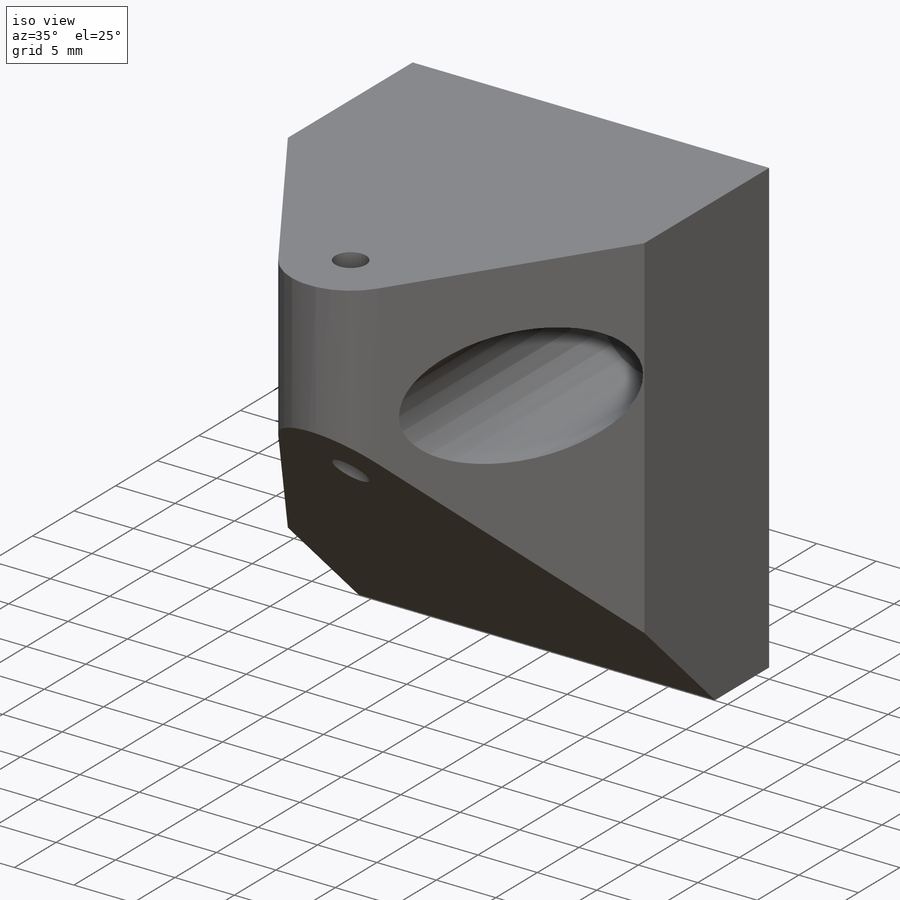
[diagram: iso view]
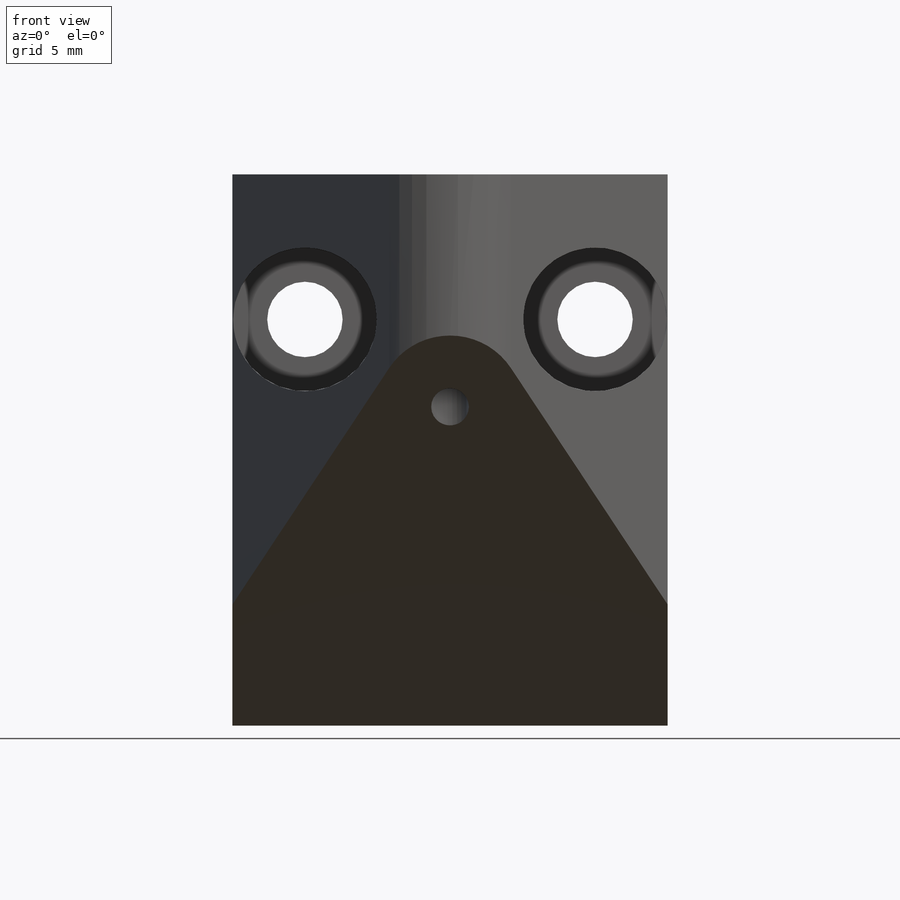
[diagram: front view]
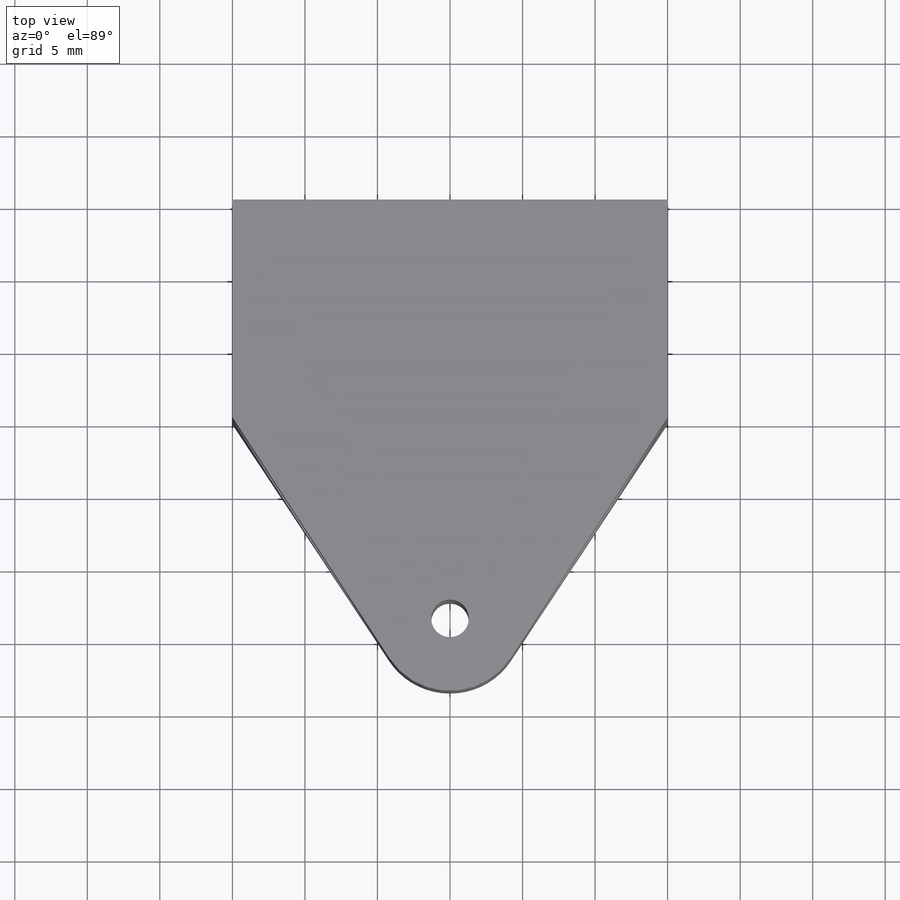
[diagram: top view]
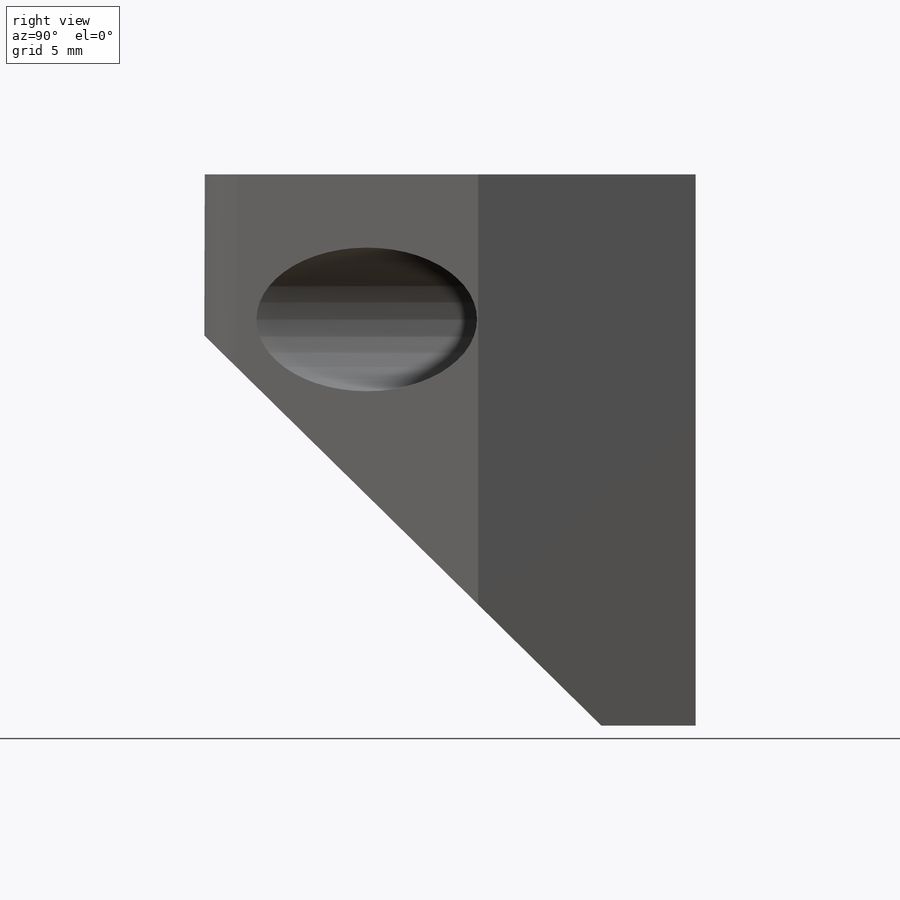
[diagram: right view]
SOLIDWORKS PART (.sldprt)
format: sldprt  version: not decoded by parser v0  size: 197,632 bytes
history: native  units: mm
features: sketch x5, cut_extrude x4, material x1, extrude x1 (+13 scaffold rows collapsed)
feature tree (24):
  scaffold x13  (default folders/planes/origin — collapsed)
  material  "ABS"
  sketch  "Sketch2"  dims[D1=38.0mm D2=6.5mm D3=35.0mm D4=10.0mm]
  extrude  "Boss-Extrude1"  Depth=30mm
  sketch  "Sketch3"  dims[c1.D1=5.2mm c1.D2=5.2mm c1.D3=5.2mm c1.D4=5.2mm c1.D5=5.2mm c2.D2=20.0mm c2.D3=20.0mm c2.D4=10.0mm c2.D5=~12.679492mm c3.D2=20.0mm]
  cut_extrude  "Cut-Extrude1"  [1 undecoded]
  sketch  "Sketch4"  dims[D1=9.9mm]
  cut_extrude  "Cut-Extrude2"  Depth=6.5mm
  sketch  "Sketch5"  dims[c1.D1=~5.610173mm c1.D2=2.6mm c2.D1=28.87mm c2.D3=28.6mm]
  cut_extrude  "Cut-Extrude3"  [1 undecoded]
  sketch  "Sketch6"  dims[D2=5.0mm D1=20.0mm]
  cut_extrude  "Cut-Extrude4"  [1 undecoded]
decode coverage: 7 of 10 modeling features carry decoded parameters
note: ~ marks probable driven/reference dimensions
note: 3 parameter values undecoded
summary: no parameter record found for 3 features
note: suppression state not decoded; provenance and decode notes live in map.json
